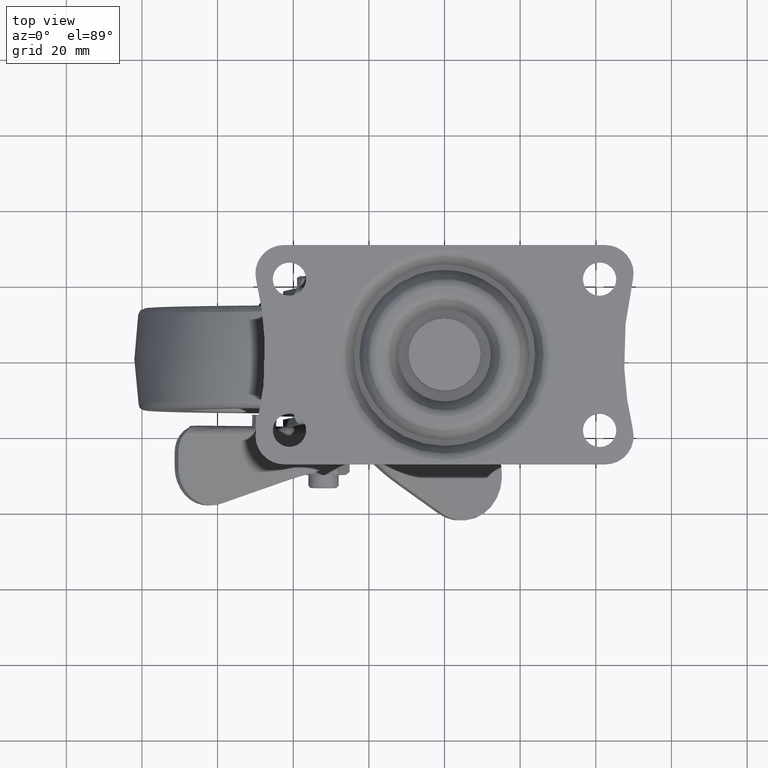
[diagram: clean part render]
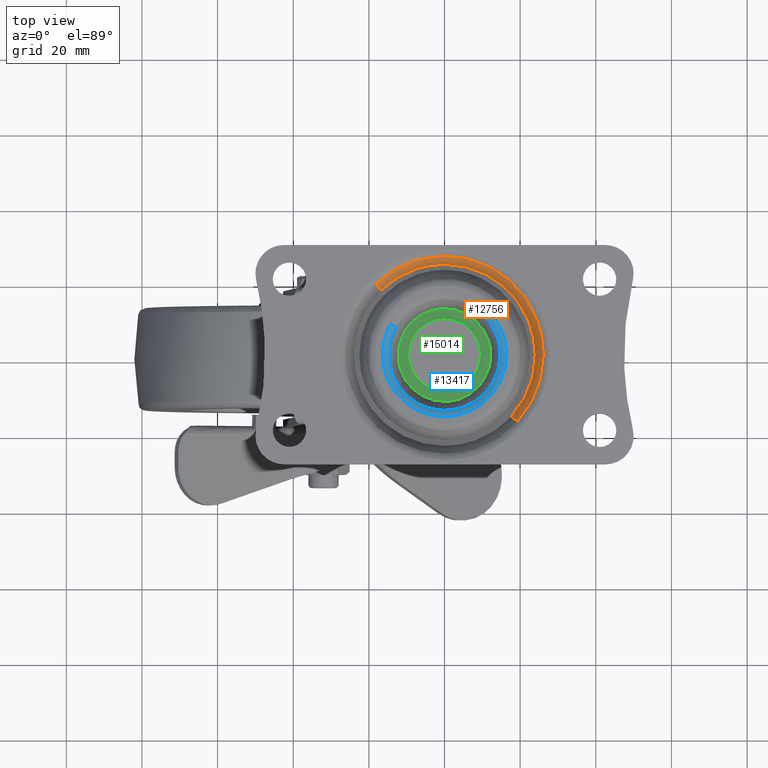
[diagram: same view with three faces highlighted in distinct colors, each labeled with its STEP entity id]
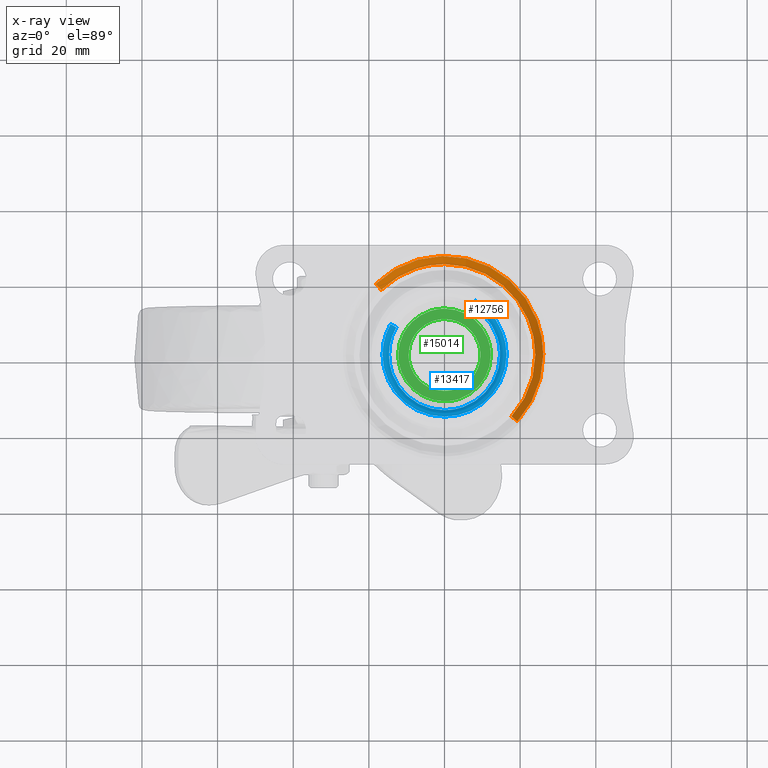
[diagram: x-ray of the same camera — body ghosted, the three highlighted faces saturated]
A machine part, top view with three faces highlighted in distinct colors.
The next image is the same camera in x-ray (body ghosted, the three faces saturated) — at least one of them is partly hidden behind the body in this view.
Their STEP definitions:

[orange] entity #12756 — the highlighted face is a freeform B-spline surface patch.
#12551=CARTESIAN_POINT('',(-16.738367387624571,17.199622891803049,-3.200001207086255));
#12552=VERTEX_POINT('',#12551);
#12563=CARTESIAN_POINT('',(-18.209585605667328,18.711383146306421,0.912760132650579));
#12564=VERTEX_POINT('',#12563);
#12565=CARTESIAN_POINT('',(-16.738367387624571,17.199622891803049,-3.200001207086255));
#12566=CARTESIAN_POINT('',(-18.209585605667328,18.711383146306421,0.912760132650579));
#12567=QUASI_UNIFORM_CURVE('',1,(#12565,#12566),.UNSPECIFIED.,.F.,.U.);
#12568=EDGE_CURVE('',#12552,#12564,#12567,.T.);
#12607=CARTESIAN_POINT('',(19.249925871442489,-17.639307173527389,0.912759720756638));
#12608=VERTEX_POINT('',#12607);
#12619=CARTESIAN_POINT('',(17.694655630708379,-16.214164567921220,-3.200001206374453));
#12620=VERTEX_POINT('',#12619);
#12621=CARTESIAN_POINT('',(17.694655630708379,-16.214164567921220,-3.200001206374453));
#12622=CARTESIAN_POINT('',(19.249925871442489,-17.639307173527389,0.912759720756638));
#12623=QUASI_UNIFORM_CURVE('',1,(#12621,#12622),.UNSPECIFIED.,.F.,.U.);
#12624=EDGE_CURVE('',#12620,#12608,#12623,.T.);
#12657=CARTESIAN_POINT('',(17.655774316326909,-16.178536407466499,-3.302820028411124));
#12658=CARTESIAN_POINT('',(33.834310723793401,1.477237908860406,-3.302820028411125));
#12659=CARTESIAN_POINT('',(16.178536407466488,17.655774316326891,-3.302820028411124));
#12660=CARTESIAN_POINT('',(-0.494754802268608,32.934030825277816,-3.302820028411125));
#12661=CARTESIAN_POINT('',(-16.701587372679150,17.161829338084889,-3.302820028411125));
#12662=CARTESIAN_POINT('',(19.289780579379901,-17.675827284841670,1.018149640564464));
#12663=CARTESIAN_POINT('',(36.965607864221546,1.613953294538230,1.018149640564464));
#12664=CARTESIAN_POINT('',(17.675827284841649,19.289780579379880,1.018149640564464));
#12665=CARTESIAN_POINT('',(-0.540543360226946,35.982008878912112,1.018149640564464));
#12666=CARTESIAN_POINT('',(-18.247285560758510,18.750121990758039,1.018149640564464));
#12674=(BOUNDED_SURFACE()B_SPLINE_SURFACE(2,1,((#12657,#12662),(#12658,#12663),(#12659,#12664),(#12660,#12665),(#12661,#12666)),.UNSPECIFIED.,.F.,.F.,.U.)B_SPLINE_SURFACE_WITH_KNOTS((3,2,3),(2,2),(0.0,43.349162288101262,84.964358084678452),(0.0,4.856195560248199),.UNSPECIFIED.)GEOMETRIC_REPRESENTATION_ITEM()RATIONAL_B_SPLINE_SURFACE(((1.0,1.0),(0.707106781186548,0.707106781186548),(1.0,1.0),(0.718822509939086,0.718822509939086),(0.977505800795127,0.977505800795127)))REPRESENTATION_ITEM('')SURFACE());
#12675=CARTESIAN_POINT('',(0.000002040609439,23.999999999999901,-3.200001000000045));
#12676=VERTEX_POINT('',#12675);
#12677=CARTESIAN_POINT('',(-16.738367387624571,17.199622891803049,-3.200001207086255));
#12678=CARTESIAN_POINT('',(-15.563142186105740,18.343646800724208,-3.200001192546432));
#12679=CARTESIAN_POINT('',(-13.205063967902779,20.208724457401690,-3.200001163372417));
#12680=CARTESIAN_POINT('',(-9.688365857397731,22.050075731969709,-3.200001119864022));
#12681=CARTESIAN_POINT('',(-5.402274352175878,23.555231643417780,-3.200001066836701));
#12682=CARTESIAN_POINT('',(-2.219065613848053,24.000831936899651,-3.200001027454246));
#12683=CARTESIAN_POINT('',(0.000002040609439,23.999999999999901,-3.200001000000045));
#12684=B_SPLINE_CURVE_WITH_KNOTS('',3,(#12677,#12678,#12679,#12680,#12681,#12682,#12683),.UNSPECIFIED.,.F.,.U.,(4,1,1,1,4),(0.000000032328813,4.920308850385712,8.972337532066698,11.866606675561760,18.523503019964739),.UNSPECIFIED.);
#12685=EDGE_CURVE('',#12552,#12676,#12684,.T.);
#12686=ORIENTED_EDGE('',*,*,#12685,.T.);
#12687=CARTESIAN_POINT('',(24.0,-1.421085E-014,-3.200001000000045));
#12688=VERTEX_POINT('',#12687);
#12689=CARTESIAN_POINT('',(0.000002040609439,23.999999999999901,-3.200001000000045));
#12690=CARTESIAN_POINT('',(2.061750570999021,24.000633123285940,-3.200001000000046));
#12691=CARTESIAN_POINT('',(5.104801630879098,23.605300102546948,-3.200001000000047));
#12692=CARTESIAN_POINT('',(9.401027757538515,22.185948560213500,-3.200001000000043));
#12693=CARTESIAN_POINT('',(12.737122968668670,20.481066165376731,-3.200001000000047));
#12694=CARTESIAN_POINT('',(15.571813444985960,18.351424041819051,-3.200001000000043));
#12695=CARTESIAN_POINT('',(17.893400255182492,16.086120416667189,-3.200001000000044));
#12696=CARTESIAN_POINT('',(19.861811339809989,13.626757736661499,-3.200001000000047));
#12697=CARTESIAN_POINT('',(21.745393629870730,10.394810421235830,-3.200001000000053));
#12698=CARTESIAN_POINT('',(23.483568954552300,5.890079558495962,-3.200001000000008));
#12699=CARTESIAN_POINT('',(24.000735983449140,2.258097270992490,-3.200001000000113));
#12700=CARTESIAN_POINT('',(24.0,-1.421085E-014,-3.200001000000045));
#12701=B_SPLINE_CURVE_WITH_KNOTS('',3,(#12689,#12690,#12691,#12692,#12693,#12694,#12695,#12696,#12697,#12698,#12699,#12700),.UNSPECIFIED.,.F.,.U.,(4,1,1,1,1,1,1,1,1,4),(0.000000084257465,6.185031377126169,9.130309154477267,13.548226258722270,17.377109248554198,19.733198958501230,23.267559385436410,26.801875955970839,30.925271117491381,37.699347238875369),.UNSPECIFIED.);
#12702=EDGE_CURVE('',#12676,#12688,#12701,.T.);
#12703=ORIENTED_EDGE('',*,*,#12702,.T.);
#12704=CARTESIAN_POINT('',(24.0,-1.421085E-014,-3.200001000000045));
#12705=CARTESIAN_POINT('',(24.001103181609370,-2.318183915605031,-3.200001029505954));
#12706=CARTESIAN_POINT('',(23.458085128713339,-6.026254895976293,-3.200001076702427));
#12707=CARTESIAN_POINT('',(21.267276065809561,-11.565469528110921,-3.200001147205702));
#12708=CARTESIAN_POINT('',(19.198630054258679,-14.573929296825140,-3.200001185497489));
#12709=CARTESIAN_POINT('',(17.694655630708379,-16.214164567921220,-3.200001206374453));
#12710=B_SPLINE_CURVE_WITH_KNOTS('',3,(#12704,#12705,#12706,#12707,#12708,#12709),.UNSPECIFIED.,.F.,.U.,(4,1,1,4),(0.000000034617518,6.954098031272347,11.126534670269990,17.802457778734240),.UNSPECIFIED.);
#12711=EDGE_CURVE('',#12688,#12620,#12710,.T.);
#12712=ORIENTED_EDGE('',*,*,#12711,.T.);
#12713=ORIENTED_EDGE('',*,*,#12624,.T.);
#12714=CARTESIAN_POINT('',(26.109478487690151,-1.421085E-014,0.912760128032581));
#12715=VERTEX_POINT('',#12714);
#12716=CARTESIAN_POINT('',(26.109478487690151,-1.421085E-014,0.912760128032581));
#12717=CARTESIAN_POINT('',(26.109877561013342,-1.916579928165969,0.912760083780448));
#12718=CARTESIAN_POINT('',(25.785831647810479,-4.841645424171607,0.912760016243291));
#12719=CARTESIAN_POINT('',(24.648232670500992,-8.825016583754502,0.912759924270779));
#12720=CARTESIAN_POINT('',(22.852917834150670,-13.006064837347591,0.912759827734093));
#12721=CARTESIAN_POINT('',(20.817945020950809,-15.929259203491821,0.912759760240127));
#12722=CARTESIAN_POINT('',(19.249925871442489,-17.639307173527389,0.912759720756638));
#12723=B_SPLINE_CURVE_WITH_KNOTS('',3,(#12716,#12717,#12718,#12719,#12720,#12721,#12722),.UNSPECIFIED.,.F.,.U.,(4,1,1,1,4),(0.000000028915910,5.749645246657920,8.775796122616827,12.407102786704430,19.367203481722239),.UNSPECIFIED.);
#12724=EDGE_CURVE('',#12715,#12608,#12723,.T.);
#12725=ORIENTED_EDGE('',*,*,#12724,.F.);
#12726=CARTESIAN_POINT('',(11.707051936916081,23.337733439020351,0.912760136443108));
#12727=VERTEX_POINT('',#12726);
#12728=CARTESIAN_POINT('',(11.707051936916081,23.337733439020351,0.912760136443108));
#12729=CARTESIAN_POINT('',(13.252889478342800,22.562454385634581,0.912760135540389));
#12730=CARTESIAN_POINT('',(16.445258019465079,20.541739610556409,0.912760133676160));
#12731=CARTESIAN_POINT('',(19.727285023824180,17.293326166017870,0.912760131759565));
#12732=CARTESIAN_POINT('',(22.153835306357919,13.938803167488050,0.912760130342543));
#12733=CARTESIAN_POINT('',(24.125360828246340,10.376771470958831,0.912760129191232));
#12734=CARTESIAN_POINT('',(25.718388488842830,5.564047803064761,0.912760128260981));
#12735=CARTESIAN_POINT('',(26.109678390613819,1.804556268546950,0.912760128032447));
#12736=CARTESIAN_POINT('',(26.109478487690151,-1.421085E-014,0.912760128032581));
#12737=B_SPLINE_CURVE_WITH_KNOTS('',3,(#12728,#12729,#12730,#12731,#12732,#12733,#12734,#12735,#12736),.UNSPECIFIED.,.F.,.U.,(4,1,1,1,1,1,4),(0.000000102315866,5.188098201553046,11.278562183584530,13.759804574598659,17.594449492897791,23.459331585218290,28.873011515909958),.UNSPECIFIED.);
#12738=EDGE_CURVE('',#12727,#12715,#12737,.T.);
#12739=ORIENTED_EDGE('',*,*,#12738,.F.);
#12740=CARTESIAN_POINT('',(-18.209585605667328,18.711383146306421,0.912760132650579));
#12741=CARTESIAN_POINT('',(-16.763490971029078,20.119269881465581,0.912760131743338));
#12742=CARTESIAN_POINT('',(-14.213562550035110,22.080532133945390,0.912760130623629));
#12743=CARTESIAN_POINT('',(-10.010238754788899,24.227661795093070,0.912760129777816));
#12744=CARTESIAN_POINT('',(-5.680240901362009,25.651741919552201,0.912760129631934));
#12745=CARTESIAN_POINT('',(-1.484584123766816,26.176529749697899,0.912760130278049));
#12746=CARTESIAN_POINT('',(2.554719248059440,26.054442336080559,0.912760131477747));
#12747=CARTESIAN_POINT('',(6.720879121221471,25.400412732841591,0.912760133201477));
#12748=CARTESIAN_POINT('',(9.903255308003788,24.243051656080429,0.912760135123877));
#12749=CARTESIAN_POINT('',(11.707051936916081,23.337733439020351,0.912760136443108));
#12750=B_SPLINE_CURVE_WITH_KNOTS('',3,(#12740,#12741,#12742,#12743,#12744,#12745,#12746,#12747,#12748,#12749),.UNSPECIFIED.,.F.,.U.,(4,1,1,1,1,1,1,4),(0.000000121575759,6.054633249395550,9.586518965070120,14.127494542311579,19.677511696548649,22.200318661668799,26.236748210515081,32.291377875077544),.UNSPECIFIED.);
#12751=EDGE_CURVE('',#12564,#12727,#12750,.T.);
#12752=ORIENTED_EDGE('',*,*,#12751,.F.);
#12753=ORIENTED_EDGE('',*,*,#12568,.F.);
#12754=EDGE_LOOP('',(#12686,#12703,#12712,#12713,#12725,#12739,#12752,#12753));
#12755=FACE_OUTER_BOUND('',#12754,.T.);
#12756=ADVANCED_FACE('',(#12755),#12674,.F.);

[blue] entity #13417 — the highlighted face is a freeform B-spline surface patch.
#12129=CARTESIAN_POINT('',(-12.769834965275400,7.230710526367409,1.000000006597535));
#12130=VERTEX_POINT('',#12129);
#12138=CARTESIAN_POINT('',(-14.674871707946719,-1.421085E-014,1.0));
#12139=VERTEX_POINT('',#12138);
#12140=CARTESIAN_POINT('',(-14.674871707946719,-1.421085E-014,1.0));
#12141=CARTESIAN_POINT('',(-14.675643841516690,1.496515730852575,0.999999999997325));
#12142=CARTESIAN_POINT('',(-14.285788379057820,4.016236617431765,1.000000001347478));
#12143=CARTESIAN_POINT('',(-13.274409949583520,6.339818252926854,1.000000004850087));
#12144=CARTESIAN_POINT('',(-12.769834965275400,7.230710526367409,1.000000006597535));
#12145=B_SPLINE_CURVE_WITH_KNOTS('',3,(#12140,#12141,#12142,#12143,#12144),.UNSPECIFIED.,.F.,.U.,(4,1,4),(0.000000019902877,4.489262760743971,7.560886599804607),.UNSPECIFIED.);
#12146=EDGE_CURVE('',#12139,#12130,#12145,.T.);
#12148=CARTESIAN_POINT('',(-0.000002646904223,-14.674871707946490,1.0));
#12149=VERTEX_POINT('',#12148);
#12150=CARTESIAN_POINT('',(-0.000002646904223,-14.674871707946490,1.0));
#12151=CARTESIAN_POINT('',(-1.080530056044101,-14.675049318982870,0.999999999999999));
#12152=CARTESIAN_POINT('',(-3.301592788501332,-14.428536139315110,1.0));
#12153=CARTESIAN_POINT('',(-6.095949524879618,-13.447999087365700,1.000000000000002));
#12154=CARTESIAN_POINT('',(-8.696271154455905,-11.932539524482291,0.999999999999992));
#12155=CARTESIAN_POINT('',(-10.835723866568600,-10.064015652739901,1.000000000000020));
#12156=CARTESIAN_POINT('',(-12.596326382116670,-7.689932674197991,0.999999999999979));
#12157=CARTESIAN_POINT('',(-13.653325329010629,-5.524033274860893,1.000000000000022));
#12158=CARTESIAN_POINT('',(-14.452567825272110,-3.001310839619228,0.999999999999984));
#12159=CARTESIAN_POINT('',(-14.675198858017129,-1.200613049055695,0.999999999999998));
#12160=CARTESIAN_POINT('',(-14.674871707946719,-1.421085E-014,1.0));
#12161=B_SPLINE_CURVE_WITH_KNOTS('',3,(#12150,#12151,#12152,#12153,#12154,#12155,#12156,#12157,#12158,#12159,#12160),.UNSPECIFIED.,.F.,.U.,(4,1,1,1,1,1,1,1,4),(0.000000258052538,3.241584928783972,6.663306499620759,8.824369834656162,12.246022516739430,15.127426315244559,17.648718042003079,19.449640385790659,23.051377719904881),.UNSPECIFIED.);
#12162=EDGE_CURVE('',#12149,#12139,#12161,.T.);
#12164=CARTESIAN_POINT('',(10.819449723341460,-9.914199067211634,0.999999714554560));
#12165=VERTEX_POINT('',#12164);
#12166=CARTESIAN_POINT('',(10.819449723341460,-9.914199067211634,0.999999714554560));
#12167=CARTESIAN_POINT('',(9.792546841912731,-11.036012197361909,0.999999741646941));
#12168=CARTESIAN_POINT('',(7.786800623493025,-12.635029894765520,0.999999794563768));
#12169=CARTESIAN_POINT('',(4.054892976747123,-14.277236354555260,0.999999893021243));
#12170=CARTESIAN_POINT('',(1.520826361960108,-14.675608110252050,0.999999959876555));
#12171=CARTESIAN_POINT('',(-0.000002646904223,-14.674871707946490,1.0));
#12172=B_SPLINE_CURVE_WITH_KNOTS('',3,(#12166,#12167,#12168,#12169,#12170,#12171),.UNSPECIFIED.,.F.,.U.,(4,1,1,4),(0.000000077829025,4.562258127397761,7.603758667598783,12.166016717215300),.UNSPECIFIED.);
#12173=EDGE_CURVE('',#12165,#12149,#12172,.T.);
#12266=CARTESIAN_POINT('',(14.674871707946719,-1.421085E-014,1.0));
#12267=VERTEX_POINT('',#12266);
#12268=CARTESIAN_POINT('',(14.674871707946719,-1.421085E-014,1.0));
#12269=CARTESIAN_POINT('',(14.675420055701849,-1.360734391271005,0.999999960822311));
#12270=CARTESIAN_POINT('',(14.349104149001221,-3.684880389042014,0.999999893906476));
#12271=CARTESIAN_POINT('',(13.007969795014359,-7.075365325069607,0.999999796289069));
#12272=CARTESIAN_POINT('',(11.700750613447269,-8.953073924632443,0.999999742226869));
#12273=CARTESIAN_POINT('',(10.819449723341460,-9.914199067211634,0.999999714554560));
#12274=B_SPLINE_CURVE_WITH_KNOTS('',3,(#12268,#12269,#12270,#12271,#12272,#12273),.UNSPECIFIED.,.F.,.U.,(4,1,1,4),(0.000000059718094,4.082036535452408,6.973424500637126,10.885365833188891),.UNSPECIFIED.);
#12275=EDGE_CURVE('',#12267,#12165,#12274,.T.);
#12277=CARTESIAN_POINT('',(7.230710526367421,12.769834965275390,1.000000006597535));
#12278=VERTEX_POINT('',#12277);
#12279=CARTESIAN_POINT('',(7.230710526367421,12.769834965275390,1.000000006597535));
#12280=CARTESIAN_POINT('',(8.213721476392202,12.213496807088481,1.000000005726321));
#12281=CARTESIAN_POINT('',(9.853309712602304,11.015820316728220,1.000000004273207));
#12282=CARTESIAN_POINT('',(12.078346878523121,8.549659102483853,1.000000002301223));
#12283=CARTESIAN_POINT('',(13.511891667328760,5.994626166488625,1.000000001030708));
#12284=CARTESIAN_POINT('',(14.459508748969080,2.985022549721866,1.000000000190879));
#12285=CARTESIAN_POINT('',(14.675080465931980,1.129527117373683,0.999999999999813));
#12286=CARTESIAN_POINT('',(14.674871707946719,-1.421085E-014,1.0));
#12287=B_SPLINE_CURVE_WITH_KNOTS('',3,(#12279,#12280,#12281,#12282,#12283,#12284,#12285,#12286),.UNSPECIFIED.,.F.,.U.,(4,1,1,1,1,4),(0.000000039091734,3.388560953132492,6.051042223283483,9.923645084544994,12.102044281465480,15.490605195506401),.UNSPECIFIED.);
#12288=EDGE_CURVE('',#12278,#12267,#12287,.T.);
#13306=CARTESIAN_POINT('',(7.207340336728685,12.728561917607729,0.912933249922330));
#13307=CARTESIAN_POINT('',(19.935902254336430,5.521221580879041,0.912933249922330));
#13308=CARTESIAN_POINT('',(12.728561917607740,-7.207340336728699,0.912933249922330));
#13309=CARTESIAN_POINT('',(5.521221580879056,-19.935902254336440,0.912933249922330));
#13310=CARTESIAN_POINT('',(-7.207340336728684,-12.728561917607751,0.912933249922330));
#13311=CARTESIAN_POINT('',(-19.935902254336430,-5.521221580879063,0.912933249922330));
#13312=CARTESIAN_POINT('',(-12.728561917607751,7.207340336728664,0.912933249922330));
#13313=CARTESIAN_POINT('',(7.497704770188922,13.241361577023728,2.061592209842800));
#13314=CARTESIAN_POINT('',(20.739066347212670,5.743656806834810,2.061592209842801));
#13315=CARTESIAN_POINT('',(13.241361577023753,-7.497704770188935,2.061592209842800));
#13316=CARTESIAN_POINT('',(5.743656806834826,-20.739066347212692,2.061592209842801));
#13317=CARTESIAN_POINT('',(-7.497704770188920,-13.241361577023767,2.061592209842800));
#13318=CARTESIAN_POINT('',(-20.739066347212670,-5.743656806834832,2.061592209842801));
#13319=CARTESIAN_POINT('',(-13.241361577023753,7.497704770188900,2.061592209842800));
#13320=CARTESIAN_POINT('',(8.133034459864454,14.363388970668366,1.997536652322320));
#13321=CARTESIAN_POINT('',(22.496423430532829,6.230354510803910,1.997536652322320));
#13322=CARTESIAN_POINT('',(14.363388970668378,-8.133034459864467,1.997536652322320));
#13323=CARTESIAN_POINT('',(6.230354510803926,-22.496423430532843,1.997536652322320));
#13324=CARTESIAN_POINT('',(-8.133034459864451,-14.363388970668389,1.997536652322320));
#13325=CARTESIAN_POINT('',(-22.496423430532829,-6.230354510803934,1.997536652322320));
#13326=CARTESIAN_POINT('',(-14.363388970668378,8.133034459864430,1.997536652322320));
#13334=(BOUNDED_SURFACE()B_SPLINE_SURFACE(2,2,((#13306,#13313,#13320),(#13307,#13314,#13321),(#13308,#13315,#13322),(#13309,#13316,#13323),(#13310,#13317,#13324),(#13311,#13318,#13325),(#13312,#13319,#13326)),.UNSPECIFIED.,.F.,.F.,.U.)B_SPLINE_SURFACE_WITH_KNOTS((3,2,2,3),(3,3),(0.0,27.348295030170728,54.696590060341450,82.044885090512167),(0.0,2.357739479483474),.UNSPECIFIED.)GEOMETRIC_REPRESENTATION_ITEM()RATIONAL_B_SPLINE_SURFACE(((0.922415981940262,0.774511120996902,0.921293791951528),(0.652246595904807,0.547662065761304,0.651453087753994),(0.922415981940262,0.774511120996902,0.921293791951528),(0.652246595904807,0.547662065761304,0.651453087753994),(0.922415981940262,0.774511120996902,0.921293791951528),(0.652246595904807,0.547662065761304,0.651453087753994),(0.922415981940262,0.774511120996902,0.921293791951528)))REPRESENTATION_ITEM('')SURFACE());
#13335=ORIENTED_EDGE('',*,*,#12288,.T.);
#13336=ORIENTED_EDGE('',*,*,#12275,.T.);
#13337=ORIENTED_EDGE('',*,*,#12173,.T.);
#13338=ORIENTED_EDGE('',*,*,#12162,.T.);
#13339=ORIENTED_EDGE('',*,*,#12146,.T.);
#13340=CARTESIAN_POINT('',(-14.277037437115419,8.084139314058458,2.0));
#13341=VERTEX_POINT('',#13340);
#13342=CARTESIAN_POINT('',(-12.769834965275400,7.230710526367409,1.000000006597535));
#13343=CARTESIAN_POINT('',(-12.855206012900499,7.279050487970537,1.170090392192683));
#13344=CARTESIAN_POINT('',(-13.081958981533550,7.407445653613370,1.498236944606819));
#13345=CARTESIAN_POINT('',(-13.593769974354229,7.697250270618451,1.891470311862351));
#13346=CARTESIAN_POINT('',(-14.030198858379340,7.944370999561052,2.000347680114392));
#13347=CARTESIAN_POINT('',(-14.277037437115419,8.084139314058458,2.0));
#13348=B_SPLINE_CURVE_WITH_KNOTS('',3,(#13342,#13343,#13344,#13345,#13346,#13347),.UNSPECIFIED.,.F.,.U.,(4,1,1,4),(0.000000281177052,0.589079812692491,1.243573555824980,2.094488510114181),.UNSPECIFIED.);
#13349=EDGE_CURVE('',#12130,#13341,#13348,.T.);
#13350=ORIENTED_EDGE('',*,*,#13349,.T.);
#13351=CARTESIAN_POINT('',(-16.406922515515600,-1.421085E-014,2.0));
#13352=VERTEX_POINT('',#13351);
#13353=CARTESIAN_POINT('',(-16.406922515515600,-1.421085E-014,2.0));
#13354=CARTESIAN_POINT('',(-16.407064684745261,1.144704107792586,2.000000000000004));
#13355=CARTESIAN_POINT('',(-16.110947263063121,3.962426245924298,1.999999999999994));
#13356=CARTESIAN_POINT('',(-15.102204571209350,6.628621104115258,2.000000000000005));
#13357=CARTESIAN_POINT('',(-14.277037437115419,8.084139314058458,2.0));
#13358=B_SPLINE_CURVE_WITH_KNOTS('',3,(#13353,#13354,#13355,#13356,#13357),.UNSPECIFIED.,.F.,.U.,(4,1,4),(0.000000011467746,3.434147610637980,8.453285524027692),.UNSPECIFIED.);
#13359=EDGE_CURVE('',#13352,#13341,#13358,.T.);
#13360=ORIENTED_EDGE('',*,*,#13359,.F.);
#13361=CARTESIAN_POINT('',(-0.000002491606813,-16.406922515515429,2.0));
#13362=VERTEX_POINT('',#13361);
#13363=CARTESIAN_POINT('',(-0.000002491606813,-16.406922515515429,2.0));
#13364=CARTESIAN_POINT('',(-1.476570795161404,-16.407402737939918,1.999999999999999));
#13365=CARTESIAN_POINT('',(-3.758165857545924,-16.096730597337050,2.000000000000004));
#13366=CARTESIAN_POINT('',(-6.799587175192443,-15.008345518652430,1.999999999999994));
#13367=CARTESIAN_POINT('',(-9.101176865620881,-13.741586947926679,2.000000000000013));
#13368=CARTESIAN_POINT('',(-11.372582502892961,-11.946477494701920,1.999999999999970));
#13369=CARTESIAN_POINT('',(-13.248814744036400,-9.824645410421333,2.000000000000029));
#13370=CARTESIAN_POINT('',(-14.822280303395260,-7.235494567782272,1.999999999999973));
#13371=CARTESIAN_POINT('',(-16.060288612063299,-4.026669035232562,2.000000000000019));
#13372=CARTESIAN_POINT('',(-16.407386931713368,-1.476552327610858,2.000000000000001));
#13373=CARTESIAN_POINT('',(-16.406922515515600,-1.421085E-014,2.0));
#13374=B_SPLINE_CURVE_WITH_KNOTS('',3,(#13363,#13364,#13365,#13366,#13367,#13368,#13369,#13370,#13371,#13372,#13373),.UNSPECIFIED.,.F.,.U.,(4,1,1,1,1,1,1,1,4),(0.000000224493871,4.429549328115794,6.845717789052095,9.664587878073442,12.282097323585440,15.503507873256281,18.121000301294568,21.342524397874651,25.772093925013031),.UNSPECIFIED.);
#13375=EDGE_CURVE('',#13362,#13352,#13374,.T.);
#13376=ORIENTED_EDGE('',*,*,#13375,.F.);
#13377=CARTESIAN_POINT('',(16.406922515515600,-1.421085E-014,2.0));
#13378=VERTEX_POINT('',#13377);
#13379=CARTESIAN_POINT('',(16.406922515515600,-1.421085E-014,2.0));
#13380=CARTESIAN_POINT('',(16.407395463540269,-1.476538281377059,2.0));
#13381=CARTESIAN_POINT('',(16.042078783061040,-4.160915361529607,2.000000000000002));
#13382=CARTESIAN_POINT('',(14.662941428469811,-7.609205395220752,1.999999999999996));
#13383=CARTESIAN_POINT('',(12.919136807881420,-10.253818567514569,2.000000000000012));
#13384=CARTESIAN_POINT('',(10.968254529482230,-12.302838536701120,1.999999999999983));
#13385=CARTESIAN_POINT('',(8.653531591670365,-14.041755777489890,2.000000000000018));
#13386=CARTESIAN_POINT('',(6.183779263225178,-15.284889174066461,1.999999999999995));
#13387=CARTESIAN_POINT('',(3.221397738286484,-16.183499388395909,1.999999999999989));
#13388=CARTESIAN_POINT('',(1.208068803614814,-16.407134459065450,2.000000000000005));
#13389=CARTESIAN_POINT('',(-0.000002491606813,-16.406922515515429,2.0));
#13390=B_SPLINE_CURVE_WITH_KNOTS('',3,(#13379,#13380,#13381,#13382,#13383,#13384,#13385,#13386,#13387,#13388,#13389),.UNSPECIFIED.,.F.,.U.,(4,1,1,1,1,1,1,1,4),(0.000000223622077,4.429549810041547,8.053806357969254,11.073967320197241,13.892740981624289,16.510231001912668,19.731762101746511,22.147914224192672,25.772096733652209),.UNSPECIFIED.);
#13391=EDGE_CURVE('',#13378,#13362,#13390,.T.);
#13392=ORIENTED_EDGE('',*,*,#13391,.F.);
#13393=CARTESIAN_POINT('',(8.084139314058469,14.277037437115411,2.0));
#13394=VERTEX_POINT('',#13393);
#13395=CARTESIAN_POINT('',(8.084139314058469,14.277037437115411,2.0));
#13396=CARTESIAN_POINT('',(9.026068756258995,13.743772043910949,1.999999999999997));
#13397=CARTESIAN_POINT('',(11.100428275904950,12.281196854332460,2.000000000000002));
#13398=CARTESIAN_POINT('',(13.515956913300670,9.558859700182891,1.999999999999999));
#13399=CARTESIAN_POINT('',(15.129689187100389,6.567067591911656,2.0));
#13400=CARTESIAN_POINT('',(16.146563092400012,3.472630867361644,1.999999999999998));
#13401=CARTESIAN_POINT('',(16.407267926558859,1.307964349731547,1.999999999999990));
#13402=CARTESIAN_POINT('',(16.406922515515600,-1.421085E-014,2.0));
#13403=B_SPLINE_CURVE_WITH_KNOTS('',3,(#13395,#13396,#13397,#13398,#13399,#13400,#13401,#13402),.UNSPECIFIED.,.F.,.U.,(4,1,1,1,1,4),(0.000000097358630,3.247261097837262,7.577000661671910,10.824214738771440,13.395001686738560,17.318788467680140),.UNSPECIFIED.);
#13404=EDGE_CURVE('',#13394,#13378,#13403,.T.);
#13405=ORIENTED_EDGE('',*,*,#13404,.F.);
#13406=CARTESIAN_POINT('',(7.230710526367421,12.769834965275390,1.000000006597535));
#13407=CARTESIAN_POINT('',(7.295114816560591,12.883576506290479,1.226871215509821));
#13408=CARTESIAN_POINT('',(7.461417254291016,13.177275815405100,1.611219309107981));
#13409=CARTESIAN_POINT('',(7.772396810167923,13.726482922134631,1.935338984767544));
#13410=CARTESIAN_POINT('',(7.987392398395262,14.106177029695511,2.000064522908521));
#13411=CARTESIAN_POINT('',(8.084139314058469,14.277037437115411,2.0));
#13412=B_SPLINE_CURVE_WITH_KNOTS('',3,(#13406,#13407,#13408,#13409,#13410,#13411),.UNSPECIFIED.,.F.,.U.,(4,1,1,4),(0.000000281177224,0.785434964145413,1.505408978598750,2.094488510114179),.UNSPECIFIED.);
#13413=EDGE_CURVE('',#12278,#13394,#13412,.T.);
#13414=ORIENTED_EDGE('',*,*,#13413,.F.);
#13415=EDGE_LOOP('',(#13335,#13336,#13337,#13338,#13339,#13350,#13360,#13376,#13392,#13405,#13414));
#13416=FACE_OUTER_BOUND('',#13415,.T.);
#13417=ADVANCED_FACE('',(#13416),#13334,.T.);

[green] entity #15014 — the highlighted face is a freeform B-spline surface patch.
#8793=CARTESIAN_POINT('',(-6.658638528895652,-6.775879915800916,-3.200001000000065));
#8794=VERTEX_POINT('',#8793);
#8800=CARTESIAN_POINT('',(-0.000003304050324,-9.499999999999425,-3.200001000000065));
#8801=VERTEX_POINT('',#8800);
#8802=CARTESIAN_POINT('',(-0.000003304050324,-9.499999999999425,-3.200001000000065));
#8803=CARTESIAN_POINT('',(-0.691721735746739,-9.500076148367333,-3.200001000000067));
#8804=CARTESIAN_POINT('',(-2.267346251830612,-9.327374609797639,-3.200001000000064));
#8805=CARTESIAN_POINT('',(-4.593376792195451,-8.457243607604935,-3.200001000000071));
#8806=CARTESIAN_POINT('',(-6.028388580280703,-7.395587288077147,-3.200001000000061));
#8807=CARTESIAN_POINT('',(-6.658638528895652,-6.775879915800916,-3.200001000000065));
#8808=B_SPLINE_CURVE_WITH_KNOTS('',3,(#8802,#8803,#8804,#8805,#8806,#8807),.UNSPECIFIED.,.F.,.U.,(4,1,1,4),(0.000000080733194,2.075184695032644,4.726795420785457,7.378421617256168),.UNSPECIFIED.);
#8809=EDGE_CURVE('',#8801,#8794,#8808,.T.);
#8811=CARTESIAN_POINT('',(9.500000000000000,0.0,-3.200001000000065));
#8812=VERTEX_POINT('',#8811);
#8813=CARTESIAN_POINT('',(9.500000000000000,0.0,-3.200001000000065));
#8814=CARTESIAN_POINT('',(9.500715483870575,-1.088204480444450,-3.200001000000066));
#8815=CARTESIAN_POINT('',(9.182626986979678,-2.914105837983108,-3.200001000000067));
#8816=CARTESIAN_POINT('',(8.000910179663777,-5.297850160577037,-3.200001000000063));
#8817=CARTESIAN_POINT('',(6.374728814235275,-7.207033867775586,-3.200001000000061));
#8818=CARTESIAN_POINT('',(4.512934225314398,-8.450969324613659,-3.200001000000067));
#8819=CARTESIAN_POINT('',(2.331409801982657,-9.292179904382701,-3.200001000000069));
#8820=CARTESIAN_POINT('',(0.932720127112675,-9.500460642299471,-3.200001000000050));
#8821=CARTESIAN_POINT('',(-0.000003304050324,-9.499999999999425,-3.200001000000065));
#8822=B_SPLINE_CURVE_WITH_KNOTS('',3,(#8813,#8814,#8815,#8816,#8817,#8818,#8819,#8820,#8821),.UNSPECIFIED.,.F.,.U.,(4,1,1,1,1,1,4),(0.000000312613395,3.264325714748074,5.479427038280319,7.927580733281022,10.725653778686381,12.124669555936450,14.922660599567330),.UNSPECIFIED.);
#8823=EDGE_CURVE('',#8812,#8801,#8822,.T.);
#8825=CARTESIAN_POINT('',(0.000003304050281,9.499999999999426,-3.200001000000065));
#8826=VERTEX_POINT('',#8825);
#8827=CARTESIAN_POINT('',(0.000003304050281,9.499999999999426,-3.200001000000065));
#8828=CARTESIAN_POINT('',(0.816096181175953,9.500253669573233,-3.200001000000056));
#8829=CARTESIAN_POINT('',(2.292687889124589,9.308487398013249,-3.200001000000078));
#8830=CARTESIAN_POINT('',(4.375537790355601,8.519810231177694,-3.200001000000058));
#8831=CARTESIAN_POINT('',(5.943404752612348,7.485990567180527,-3.200001000000078));
#8832=CARTESIAN_POINT('',(7.170442265108229,6.288520491745174,-3.200001000000062));
#8833=CARTESIAN_POINT('',(8.130428082584734,5.010594546021450,-3.200001000000064));
#8834=CARTESIAN_POINT('',(9.166730455304924,2.952832360818833,-3.200001000000074));
#8835=CARTESIAN_POINT('',(9.500964523943326,1.165987031895859,-3.200001000000075));
#8836=CARTESIAN_POINT('',(9.500000000000000,0.0,-3.200001000000065));
#8837=B_SPLINE_CURVE_WITH_KNOTS('',3,(#8827,#8828,#8829,#8830,#8831,#8832,#8833,#8834,#8835,#8836),.UNSPECIFIED.,.F.,.U.,(4,1,1,1,1,1,1,4),(0.000000313758738,2.448230370747144,4.430171926295241,6.645282326504161,8.044227358369991,9.559779988688337,11.425165038695440,14.922656875109270),.UNSPECIFIED.);
#8838=EDGE_CURVE('',#8826,#8812,#8837,.T.);
#8840=CARTESIAN_POINT('',(-6.775878747750209,6.658637360897342,-3.200001000000065));
#8841=VERTEX_POINT('',#8840);
#8842=CARTESIAN_POINT('',(-6.775878747750209,6.658637360897342,-3.200001000000065));
#8843=CARTESIAN_POINT('',(-6.170184425349305,7.275426440767187,-3.200001000000069));
#8844=CARTESIAN_POINT('',(-4.945744508412605,8.220439052151827,-3.200001000000060));
#8845=CARTESIAN_POINT('',(-2.632342882337769,9.241675819617987,-3.200001000000074));
#8846=CARTESIAN_POINT('',(-0.982374595135308,9.500456661231784,-3.200001000000059));
#8847=CARTESIAN_POINT('',(0.000003304050281,9.499999999999426,-3.200001000000065));
#8848=B_SPLINE_CURVE_WITH_KNOTS('',3,(#8842,#8843,#8844,#8845,#8846,#8847),.UNSPECIFIED.,.F.,.U.,(4,1,1,4),(0.000000079849535,2.593335825392835,4.597253903522526,7.544237161802085),.UNSPECIFIED.);
#8849=EDGE_CURVE('',#8841,#8826,#8848,.T.);
#8935=CARTESIAN_POINT('',(-9.500000000000000,0.0,-3.200001000000065));
#8936=VERTEX_POINT('',#8935);
#8937=CARTESIAN_POINT('',(-9.500000000000000,0.0,-3.200001000000065));
#8938=CARTESIAN_POINT('',(-9.500334631958893,0.883910474661279,-3.200001000000063));
#8939=CARTESIAN_POINT('',(-9.294647927344206,2.343994211247599,-3.200001000000070));
#8940=CARTESIAN_POINT('',(-8.401272769127795,4.646469804426307,-3.200001000000059));
#8941=CARTESIAN_POINT('',(-7.476691133890482,5.946334015045429,-3.200001000000075));
#8942=CARTESIAN_POINT('',(-6.775878747750209,6.658637360897342,-3.200001000000065));
#8943=B_SPLINE_CURVE_WITH_KNOTS('',3,(#8937,#8938,#8939,#8940,#8941,#8942),.UNSPECIFIED.,.F.,.U.,(4,1,1,4),(0.000000080714229,2.651627228927808,4.380907993820832,7.378424265542750),.UNSPECIFIED.);
#8944=EDGE_CURVE('',#8936,#8841,#8943,.T.);
#8946=CARTESIAN_POINT('',(-6.658638528895652,-6.775879915800916,-3.200001000000065));
#8947=CARTESIAN_POINT('',(-7.275434110492253,-6.170182184431285,-3.200001000000057));
#8948=CARTESIAN_POINT('',(-8.293227753168548,-4.851604103996099,-3.200001000000068));
#8949=CARTESIAN_POINT('',(-9.273178728986173,-2.514604328894785,-3.200001000000079));
#8950=CARTESIAN_POINT('',(-9.500314399857169,-0.864472219959612,-3.200001000000058));
#8951=CARTESIAN_POINT('',(-9.500000000000000,0.0,-3.200001000000065));
#8952=B_SPLINE_CURVE_WITH_KNOTS('',3,(#8946,#8947,#8948,#8949,#8950,#8951),.UNSPECIFIED.,.F.,.U.,(4,1,1,4),(0.000000079828458,2.593334910073145,4.950899668905127,7.544234499171699),.UNSPECIFIED.);
#8953=EDGE_CURVE('',#8794,#8936,#8952,.T.);
#12108=CARTESIAN_POINT('',(-12.250000000000000,-1.421085E-014,-3.200001000000045));
#12109=VERTEX_POINT('',#12108);
#12110=CARTESIAN_POINT('',(-8.543541275172721,8.778973760736051,-3.200001313716558));
#12111=VERTEX_POINT('',#12110);
#12112=CARTESIAN_POINT('',(-12.250000000000000,-1.421085E-014,-3.200001000000045));
#12113=CARTESIAN_POINT('',(-12.250294222152020,1.070557475682205,-3.200001038256408));
#12114=CARTESIAN_POINT('',(-12.028054642755221,2.752607628683353,-3.200001098364435));
#12115=CARTESIAN_POINT('',(-11.267098115649400,4.923546106459082,-3.200001175942911));
#12116=CARTESIAN_POINT('',(-10.238679124616381,6.866305884423317,-3.200001245367382));
#12117=CARTESIAN_POINT('',(-9.237856336143725,8.103620355968200,-3.200001289582819));
#12118=CARTESIAN_POINT('',(-8.543541275172721,8.778973760736051,-3.200001313716558));
#12119=B_SPLINE_CURVE_WITH_KNOTS('',3,(#12112,#12113,#12114,#12115,#12116,#12117,#12118),.UNSPECIFIED.,.F.,.U.,(4,1,1,1,4),(0.000000082428228,3.211591497818541,5.046721570573014,6.881946159127614,9.787671740495179),.UNSPECIFIED.);
#12120=EDGE_CURVE('',#12109,#12111,#12119,.T.);
#12175=CARTESIAN_POINT('',(9.031646710524559,-8.275979433565924,-3.200001312638265));
#12176=VERTEX_POINT('',#12175);
#12182=CARTESIAN_POINT('',(-0.000002899059861,-12.249999999999670,-3.200001000000045));
#12183=VERTEX_POINT('',#12182);
#12184=CARTESIAN_POINT('',(9.031646710524559,-8.275979433565924,-3.200001312638265));
#12185=CARTESIAN_POINT('',(8.495692283217277,-8.861007333531696,-3.200001294085748));
#12186=CARTESIAN_POINT('',(7.270023950337460,-9.961877230224266,-3.200001251658207));
#12187=CARTESIAN_POINT('',(5.114976702527684,-11.227881616283041,-3.200001177059416));
#12188=CARTESIAN_POINT('',(2.644625216554332,-12.056965418641481,-3.200001091546104));
#12189=CARTESIAN_POINT('',(0.899204792641462,-12.250136484730129,-3.200001031126882));
#12190=CARTESIAN_POINT('',(-0.000002899059861,-12.249999999999670,-3.200001000000045));
#12191=B_SPLINE_CURVE_WITH_KNOTS('',3,(#12184,#12185,#12186,#12187,#12188,#12189,#12190),.UNSPECIFIED.,.F.,.U.,(4,1,1,1,4),(0.000000086700881,2.380241628522310,4.919216378112806,7.458095639540971,10.155708108738450),.UNSPECIFIED.);
#12192=EDGE_CURVE('',#12176,#12183,#12191,.T.);
#12194=CARTESIAN_POINT('',(-0.000002899059861,-12.249999999999670,-3.200001000000045));
#12195=CARTESIAN_POINT('',(-1.102466754900386,-12.250414968923041,-3.200001000000047));
#12196=CARTESIAN_POINT('',(-2.856076934568470,-12.011530936014410,-3.200001000000044));
#12197=CARTESIAN_POINT('',(-5.217429069461280,-11.150221619661449,-3.200001000000050));
#12198=CARTESIAN_POINT('',(-6.919069916038037,-10.172399435949600,-3.200001000000032));
#12199=CARTESIAN_POINT('',(-8.596881956037958,-8.812613156264581,-3.200001000000065));
#12200=CARTESIAN_POINT('',(-10.221044872471641,-6.953320452883828,-3.200001000000019));
#12201=CARTESIAN_POINT('',(-11.468937544117930,-4.583897590600214,-3.200001000000099));
#12202=CARTESIAN_POINT('',(-12.124821461616611,-2.154687738998974,-3.200000999999962));
#12203=CARTESIAN_POINT('',(-12.250046243731370,-0.701524977193104,-3.200001000000114));
#12204=CARTESIAN_POINT('',(-12.250000000000000,-1.421085E-014,-3.200001000000045));
#12205=B_SPLINE_CURVE_WITH_KNOTS('',3,(#12194,#12195,#12196,#12197,#12198,#12199,#12200,#12201,#12202,#12203,#12204),.UNSPECIFIED.,.F.,.U.,(4,1,1,1,1,1,1,1,4),(0.000000289638496,3.307251134794480,5.261591129809309,7.516604583426748,9.170201413376169,11.725772529080720,14.882775777927330,17.137788766070560,19.242374106275150),.UNSPECIFIED.);
#12206=EDGE_CURVE('',#12183,#12109,#12205,.T.);
#12229=CARTESIAN_POINT('',(0.000002899059657,12.249999999999639,-3.200001000000045));
#12230=VERTEX_POINT('',#12229);
#12231=CARTESIAN_POINT('',(-8.543541275172721,8.778973760736051,-3.200001313716558));
#12232=CARTESIAN_POINT('',(-7.908397793279666,9.397237904900617,-3.200001290394273));
#12233=CARTESIAN_POINT('',(-6.347111682350369,10.617177954308890,-3.200001233064297));
#12234=CARTESIAN_POINT('',(-3.446834010003366,11.919737406109769,-3.200001126566924));
#12235=CARTESIAN_POINT('',(-1.181875680419238,12.250444447026080,-3.200001043398304));
#12236=CARTESIAN_POINT('',(0.000002899059657,12.249999999999639,-3.200001000000045));
#12237=B_SPLINE_CURVE_WITH_KNOTS('',3,(#12231,#12232,#12233,#12234,#12235,#12236),.UNSPECIFIED.,.F.,.U.,(4,1,1,4),(0.000000069407720,2.659139495511815,5.909172620446109,9.454706295861568),.UNSPECIFIED.);
#12238=EDGE_CURVE('',#12111,#12230,#12237,.T.);
#12240=CARTESIAN_POINT('',(12.250000000000000,-1.421085E-014,-3.200001000000045));
#12241=VERTEX_POINT('',#12240);
#12242=CARTESIAN_POINT('',(0.000002899059657,12.249999999999639,-3.200001000000045));
#12243=CARTESIAN_POINT('',(1.252839274404640,12.250659323209691,-3.200001000000054));
#12244=CARTESIAN_POINT('',(3.206717211971562,11.947471740416139,-3.200001000000039));
#12245=CARTESIAN_POINT('',(5.483544763244741,11.004158560418290,-3.200001000000047));
#12246=CARTESIAN_POINT('',(7.206023121137306,9.971790535808932,-3.200001000000041));
#12247=CARTESIAN_POINT('',(8.862751877868830,8.577912327419984,-3.200001000000076));
#12248=CARTESIAN_POINT('',(10.424851914462900,6.601482379609018,-3.200000999999977));
#12249=CARTESIAN_POINT('',(11.454078273742891,4.524899456866622,-3.200001000000116));
#12250=CARTESIAN_POINT('',(12.097766531641019,2.304995961359621,-3.200000999999981));
#12251=CARTESIAN_POINT('',(12.250137943830190,0.851869012002813,-3.200001000000060));
#12252=CARTESIAN_POINT('',(12.250000000000000,-1.421085E-014,-3.200001000000045));
#12253=B_SPLINE_CURVE_WITH_KNOTS('',3,(#12242,#12243,#12244,#12245,#12246,#12247,#12248,#12249,#12250,#12251,#12252),.UNSPECIFIED.,.F.,.U.,(4,1,1,1,1,1,1,1,4),(0.000000289633036,3.758255005523791,5.862935193000677,7.366226858478289,9.771431008730337,12.327129407396869,14.882775777926270,16.686784308348919,19.242374106275310),.UNSPECIFIED.);
#12254=EDGE_CURVE('',#12230,#12241,#12253,.T.);
#12256=CARTESIAN_POINT('',(12.250000000000000,-1.421085E-014,-3.200001000000045));
#12257=CARTESIAN_POINT('',(12.250864524160420,-1.325259723770432,-3.200001050063828));
#12258=CARTESIAN_POINT('',(11.885327177502450,-3.549034299541960,-3.200001134070432));
#12259=CARTESIAN_POINT('',(10.602077972673630,-6.312951448538194,-3.200001238481779));
#12260=CARTESIAN_POINT('',(9.575249660633704,-7.682859902232052,-3.200001290232232));
#12261=CARTESIAN_POINT('',(9.031646710524559,-8.275979433565924,-3.200001312638265));
#12262=B_SPLINE_CURVE_WITH_KNOTS('',3,(#12256,#12257,#12258,#12259,#12260,#12261),.UNSPECIFIED.,.F.,.U.,(4,1,1,4),(0.000000064717566,3.975455182501636,6.673021474226895,9.086670939416793),.UNSPECIFIED.);
#12263=EDGE_CURVE('',#12241,#12176,#12262,.T.);
#14993=CARTESIAN_POINT('',(13.473774952514241,-13.473774952513891,-3.200001000000045));
#14994=CARTESIAN_POINT('',(-13.473775609655460,-13.473774952513891,-3.200001000000046));
#14995=CARTESIAN_POINT('',(13.473774952514241,13.473775609655060,-3.200001000000046));
#14996=CARTESIAN_POINT('',(-13.473775609655460,13.473775609655060,-3.200001000000046));
#14997=B_SPLINE_SURFACE_WITH_KNOTS('',1,1,((#14993,#14995),(#14994,#14996)),.UNSPECIFIED.,.F.,.F.,.U.,(2,2),(2,2),(0.0,26.947550562169699),(0.0,26.947550562168949),.UNSPECIFIED.);
#14998=ORIENTED_EDGE('',*,*,#12206,.F.);
#14999=ORIENTED_EDGE('',*,*,#12192,.F.);
#15000=ORIENTED_EDGE('',*,*,#12263,.F.);
#15001=ORIENTED_EDGE('',*,*,#12254,.F.);
#15002=ORIENTED_EDGE('',*,*,#12238,.F.);
#15003=ORIENTED_EDGE('',*,*,#12120,.F.);
#15004=EDGE_LOOP('',(#14998,#14999,#15000,#15001,#15002,#15003));
#15005=FACE_OUTER_BOUND('',#15004,.T.);
#15006=ORIENTED_EDGE('',*,*,#8838,.T.);
#15007=ORIENTED_EDGE('',*,*,#8823,.T.);
#15008=ORIENTED_EDGE('',*,*,#8809,.T.);
#15009=ORIENTED_EDGE('',*,*,#8953,.T.);
#15010=ORIENTED_EDGE('',*,*,#8944,.T.);
#15011=ORIENTED_EDGE('',*,*,#8849,.T.);
#15012=EDGE_LOOP('',(#15006,#15007,#15008,#15009,#15010,#15011));
#15013=FACE_BOUND('',#15012,.T.);
#15014=ADVANCED_FACE('',(#15005,#15013),#14997,.F.);